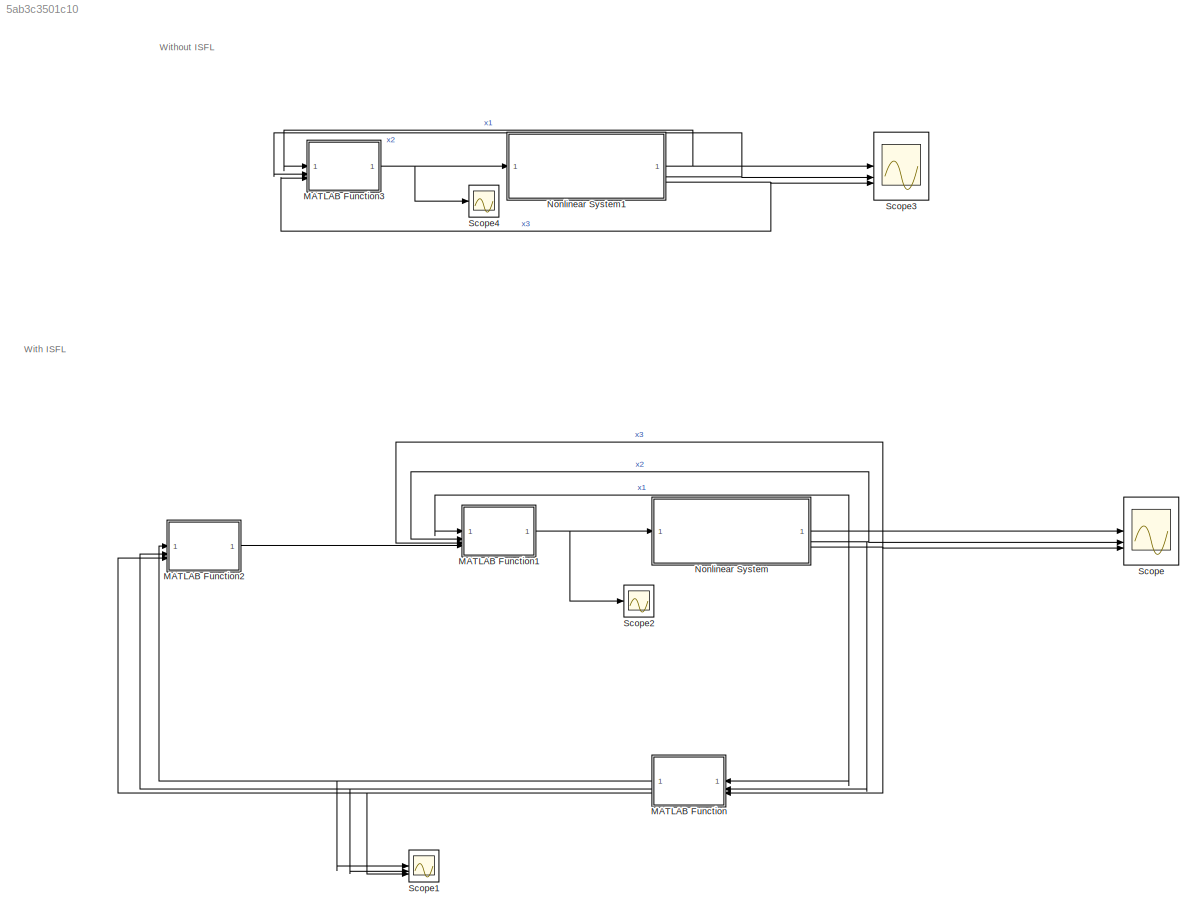
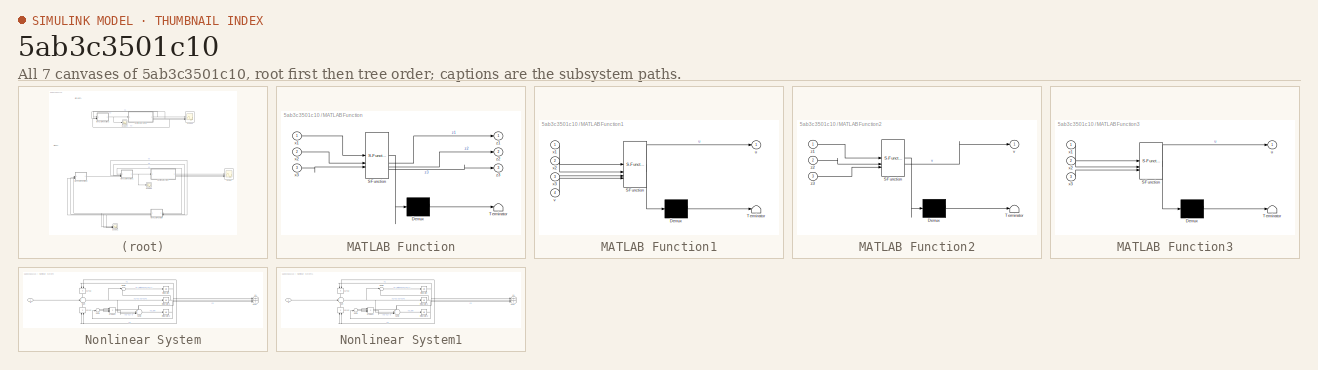
[diagram: thumbnail index - all 7 canvases of the model, root first then tree order]
MODEL slx_5ab3c3501c10
KIND model
CONFIG AbsTol = auto
CONFIG EnableMultiTasking = off
CONFIG FixedStep = auto
CONFIG MaxStep = auto
CONFIG MinStep = auto
CONFIG RelTol = 1e-3
CONFIG SampleTimeConstraint = Unconstrained
CONFIG SolverName = VariableStepAuto
CONFIG StartTime = 0.0
CONFIG StopTime = 10.0
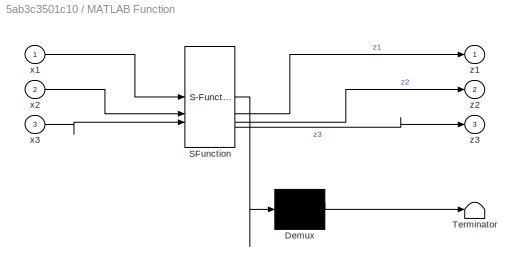
BLOCK [SubSystem] MATLAB Function
  ErrorFcn = Stateflow.Translate.translate
  LibrarySourceBlock = simulink/User-Defined\nFunctions/MATLAB Function
  NameLocation = top
  PermitHierarchicalResolution = ExplicitOnly
  SFBlockType = MATLAB Function
  TreatAsAtomicUnit = on
BLOCK [Demux] MATLAB Function/ Demux 
  Outputs = 1
BLOCK [S-Function] MATLAB Function/ SFunction 
  EnableBusSupport = on
  FunctionName = sf_sfun
  PortCounts = [3 4]
  SFcnIsStateOwnerBlock = off
  SFunctionDeploymentMode = off
  Tag = Stateflow S-Function 2
BLOCK [Terminator] MATLAB Function/ Terminator 
BLOCK [Inport] MATLAB Function/x1
BLOCK [Inport] MATLAB Function/x2
  Port = 2
BLOCK [Inport] MATLAB Function/x3
  Port = 3
BLOCK [Outport] MATLAB Function/z1
BLOCK [Outport] MATLAB Function/z2
  Port = 2
BLOCK [Outport] MATLAB Function/z3
  Port = 3
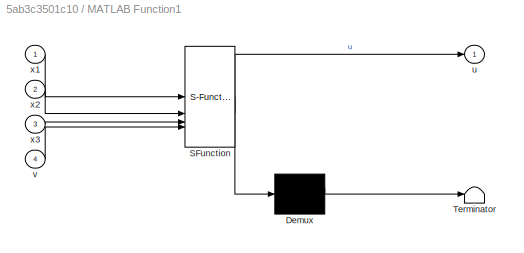
BLOCK [SubSystem] MATLAB Function1
  ErrorFcn = Stateflow.Translate.translate
  LibrarySourceBlock = simulink/User-Defined\nFunctions/MATLAB Function
  PermitHierarchicalResolution = ExplicitOnly
  SFBlockType = MATLAB Function
  TreatAsAtomicUnit = on
BLOCK [Demux] MATLAB Function1/ Demux 
  Outputs = 1
BLOCK [S-Function] MATLAB Function1/ SFunction 
  EnableBusSupport = on
  FunctionName = sf_sfun
  PortCounts = [4 2]
  SFcnIsStateOwnerBlock = off
  SFunctionDeploymentMode = off
  Tag = Stateflow S-Function 1
BLOCK [Terminator] MATLAB Function1/ Terminator 
BLOCK [Outport] MATLAB Function1/u
BLOCK [Inport] MATLAB Function1/v
  Port = 4
BLOCK [Inport] MATLAB Function1/x1
BLOCK [Inport] MATLAB Function1/x2
  Port = 2
BLOCK [Inport] MATLAB Function1/x3
  Port = 3
BLOCK [SubSystem] MATLAB Function2
  ErrorFcn = Stateflow.Translate.translate
  LibrarySourceBlock = simulink/User-Defined\nFunctions/MATLAB Function
  PermitHierarchicalResolution = ExplicitOnly
  SFBlockType = MATLAB Function
  TreatAsAtomicUnit = on
BLOCK [Demux] MATLAB Function2/ Demux 
  Outputs = 1
BLOCK [S-Function] MATLAB Function2/ SFunction 
  EnableBusSupport = on
  FunctionName = sf_sfun
  PortCounts = [3 2]
  SFcnIsStateOwnerBlock = off
  SFunctionDeploymentMode = off
  Tag = Stateflow S-Function 3
BLOCK [Terminator] MATLAB Function2/ Terminator 
BLOCK [Outport] MATLAB Function2/v
BLOCK [Inport] MATLAB Function2/z1
BLOCK [Inport] MATLAB Function2/z2
  Port = 2
BLOCK [Inport] MATLAB Function2/z3
  Port = 3
BLOCK [SubSystem] MATLAB Function3
  ErrorFcn = Stateflow.Translate.translate
  LibrarySourceBlock = simulink/User-Defined\nFunctions/MATLAB Function
  PermitHierarchicalResolution = ExplicitOnly
  SFBlockType = MATLAB Function
  TreatAsAtomicUnit = on
BLOCK [Demux] MATLAB Function3/ Demux 
  Outputs = 1
BLOCK [S-Function] MATLAB Function3/ SFunction 
  EnableBusSupport = on
  FunctionName = sf_sfun
  PortCounts = [3 2]
  SFcnIsStateOwnerBlock = off
  SFunctionDeploymentMode = off
  Tag = Stateflow S-Function 4
BLOCK [Terminator] MATLAB Function3/ Terminator 
BLOCK [Outport] MATLAB Function3/u
BLOCK [Inport] MATLAB Function3/x1
BLOCK [Inport] MATLAB Function3/x2
  Port = 2
BLOCK [Inport] MATLAB Function3/x3
  Port = 3
BLOCK [SubSystem] Nonlinear System
BLOCK [Integrator] Nonlinear System/Integrator
  InitialCondition = 1
BLOCK [Integrator] Nonlinear System/Integrator1
  InitialCondition = 1
BLOCK [Integrator] Nonlinear System/Integrator2
  InitialCondition = 1
BLOCK [Product] Nonlinear System/Product
  Inputs = 3
BLOCK [Sum] Nonlinear System/Sum
  Inputs = ++-
BLOCK [Sum] Nonlinear System/Sum1
  Inputs = -+|
BLOCK [Sum] Nonlinear System/Sum2
  Inputs = ++-|
BLOCK [Sum] Nonlinear System/Sum3
  Inputs = |++
BLOCK [Inport] Nonlinear System/u
BLOCK [Outport] Nonlinear System/x1
BLOCK [Product] Nonlinear System/x1*x2
  NameLocation = left
BLOCK [Outport] Nonlinear System/x2
  Port = 2
BLOCK [Product] Nonlinear System/x2*x2
  NameLocation = right
BLOCK [Outport] Nonlinear System/x3
  Port = 3
BLOCK [SubSystem] Nonlinear System1
BLOCK [Integrator] Nonlinear System1/Integrator
  InitialCondition = 1
BLOCK [Integrator] Nonlinear System1/Integrator1
  InitialCondition = 1
BLOCK [Integrator] Nonlinear System1/Integrator2
  InitialCondition = 1
BLOCK [Product] Nonlinear System1/Product
  Inputs = 3
BLOCK [Sum] Nonlinear System1/Sum
  Inputs = ++-
BLOCK [Sum] Nonlinear System1/Sum1
  Inputs = -+|
BLOCK [Sum] Nonlinear System1/Sum2
  Inputs = ++-|
BLOCK [Sum] Nonlinear System1/Sum3
  Inputs = |++
BLOCK [Inport] Nonlinear System1/u
BLOCK [Outport] Nonlinear System1/x1
BLOCK [Product] Nonlinear System1/x1*x2
  NameLocation = left
BLOCK [Outport] Nonlinear System1/x2
  Port = 2
BLOCK [Product] Nonlinear System1/x2*x2
  NameLocation = right
BLOCK [Outport] Nonlinear System1/x3
  Port = 3
BLOCK [Scope] Scope
  Floating = off
  NumInputPorts = 3
  ScopeSpecificationString = Simulink.scopes.TimeScopeBlockCfg('CurrentConfiguration', extmgr.ConfigurationSet(extmgr.Configuration('Core','General UI',true,'FigureColor',[1 1 1]),extmgr.Configuration('Core','Source UI',true),extmgr.Configuration('Sources','WiredSimulink',true),extmgr.Configuration('Visuals','Time Domain',true,'SerializedDisplays',{struct('MinYLimReal','-0.25696','MaxYLimReal','1.13966','YLabelReal','','MinYL...<+1857ch>
BLOCK [Scope] Scope1
  Floating = off
  NumInputPorts = 3
  ScopeSpecificationString = Simulink.scopes.TimeScopeBlockCfg('CurrentConfiguration', extmgr.ConfigurationSet(extmgr.Configuration('Core','General UI',true),extmgr.Configuration('Core','Source UI',true),extmgr.Configuration('Sources','WiredSimulink',true,'DataLoggingVariableName','ScopeData1'),extmgr.Configuration('Visuals','Time Domain',true,'SerializedDisplays',{struct('MinYLimReal','-1.13975','MaxYLimReal','0.25775','YLab...<+1448ch>
BLOCK [Scope] Scope2
  Floating = off
  NumInputPorts = 1
  ScopeSpecificationString = Simulink.scopes.TimeScopeBlockCfg('CurrentConfiguration', extmgr.ConfigurationSet(extmgr.Configuration('Core','General UI',true,'FigureColor',[1 1 1]),extmgr.Configuration('Core','Source UI',true),extmgr.Configuration('Sources','WiredSimulink',true,'DataLoggingVariableName','ScopeData1'),extmgr.Configuration('Visuals','Time Domain',true,'SerializedDisplays',{struct('MinYLimReal','-15.77296','MaxYL...<+1678ch>
BLOCK [Scope] Scope3
  Floating = off
  NumInputPorts = 3
  ScopeSpecificationString = Simulink.scopes.TimeScopeBlockCfg('CurrentConfiguration', extmgr.ConfigurationSet(extmgr.Configuration('Core','General UI',true,'FigureColor',[1 1 1]),extmgr.Configuration('Core','Source UI',true),extmgr.Configuration('Sources','WiredSimulink',true,'DataLoggingVariableName','ScopeData2'),extmgr.Configuration('Visuals','Time Domain',true,'SerializedDisplays',{struct('MinYLimReal','-0.34442','MaxYLi...<+1902ch>
BLOCK [Scope] Scope4
  Floating = off
  NumInputPorts = 1
  ScopeSpecificationString = Simulink.scopes.TimeScopeBlockCfg('CurrentConfiguration', extmgr.ConfigurationSet(extmgr.Configuration('Core','General UI',true,'FigureColor',[1 1 1]),extmgr.Configuration('Core','Source UI',true),extmgr.Configuration('Sources','WiredSimulink',true,'DataLoggingVariableName','ScopeData3'),extmgr.Configuration('Visuals','Time Domain',true,'SerializedDisplays',{struct('MinYLimReal','-3.38796','MaxYLi...<+1681ch>
ANNOTATION (root): With ISFL
ANNOTATION (root): Without ISFL
NET MATLAB Function1:1 -> Nonlinear System:1, Scope2:1
LINE MATLAB Function2:1 -> MATLAB Function1:4
NET MATLAB Function3:1 -> Nonlinear System1:1, Scope4:1
NET MATLAB Function:1 -> MATLAB Function2:1, Scope1:1
NET MATLAB Function:2 -> MATLAB Function2:2, Scope1:2
NET MATLAB Function:3 -> MATLAB Function2:3, Scope1:3
NET Nonlinear System/Integrator1:1 -> Nonlinear System/Sum3:2, Nonlinear System/x1*x2:2, Nonlinear System/x2*x2:1, Nonlinear System/x2*x2:2, Nonlinear System/x2:1
NET Nonlinear System/Integrator2:1 -> Nonlinear System/Sum1:2, Nonlinear System/x3:1
NET Nonlinear System/Integrator:1 -> Nonlinear System/Sum1:1, Nonlinear System/Sum2:1, Nonlinear System/x1*x2:1, Nonlinear System/x1:1
LINE Nonlinear System/Product:1 -> Nonlinear System/Sum2:3
NET Nonlinear System/Sum1:1 -> Nonlinear System/Product:1, Nonlinear System/Product:2, Nonlinear System/Product:3
LINE Nonlinear System/Sum2:1 -> Nonlinear System/Integrator2:1
LINE Nonlinear System/Sum3:1 -> Nonlinear System/Integrator:1
NET Nonlinear System/Sum:1 -> Nonlinear System/Integrator1:1, Nonlinear System/Sum2:2, Nonlinear System/Sum3:1
LINE Nonlinear System/u:1 -> Nonlinear System/Sum:2
LINE Nonlinear System/x1*x2:1 -> Nonlinear System/Sum:1
LINE Nonlinear System/x2*x2:1 -> Nonlinear System/Sum:3
NET Nonlinear System1/Integrator1:1 -> Nonlinear System1/Sum3:2, Nonlinear System1/x1*x2:2, Nonlinear System1/x2*x2:1, Nonlinear System1/x2*x2:2, Nonlinear System1/x2:1
NET Nonlinear System1/Integrator2:1 -> Nonlinear System1/Sum1:2, Nonlinear System1/x3:1
NET Nonlinear System1/Integrator:1 -> Nonlinear System1/Sum1:1, Nonlinear System1/Sum2:1, Nonlinear System1/x1*x2:1, Nonlinear System1/x1:1
LINE Nonlinear System1/Product:1 -> Nonlinear System1/Sum2:3
NET Nonlinear System1/Sum1:1 -> Nonlinear System1/Product:1, Nonlinear System1/Product:2, Nonlinear System1/Product:3
LINE Nonlinear System1/Sum2:1 -> Nonlinear System1/Integrator2:1
LINE Nonlinear System1/Sum3:1 -> Nonlinear System1/Integrator:1
NET Nonlinear System1/Sum:1 -> Nonlinear System1/Integrator1:1, Nonlinear System1/Sum2:2, Nonlinear System1/Sum3:1
LINE Nonlinear System1/u:1 -> Nonlinear System1/Sum:2
LINE Nonlinear System1/x1*x2:1 -> Nonlinear System1/Sum:1
LINE Nonlinear System1/x2*x2:1 -> Nonlinear System1/Sum:3
NET Nonlinear System1:1 -> MATLAB Function3:1, Scope3:1
NET Nonlinear System1:2 -> MATLAB Function3:2, Scope3:2
NET Nonlinear System1:3 -> MATLAB Function3:3, Scope3:3
NET Nonlinear System:1 -> MATLAB Function1:1, MATLAB Function:1, Scope:1
NET Nonlinear System:2 -> MATLAB Function1:2, MATLAB Function:2, Scope:2
NET Nonlinear System:3 -> MATLAB Function1:3, MATLAB Function:3, Scope:3
note: NET lines group one-source signal fan-out (src -> all destinations, sorted); 1:1 wires keep LINE
CHART MATLAB Function1 states=1 transitions=1
  STATE_LABEL 'eML_blk_kernel()'
  STATE_LABEL 'SCRIPT:\nfunction u= fcn(x1,x2,x3,v)\n\nq = x1 - x3;\nLfq = x2 - x1 - (x1 - x3)^3;\nLf2q = x1*x2 - (3*(x1 - x3)^2 + 1)*(x2 + x1*x2 - x2^2) - x2^2 + 3*(x1 - x3)^2*(x1 + (x1 - x3)^3 + x1*x2 - x2^2);\nLf3q = (x2 + x1*x2 - x2^2)*(x2 - x2*(3*(x1 - x3)^2 + 1) + 3*(x1 - x3)^2*(x2 + 3*(x1 - x3)^2 + 1) - (6*x1 - 6*x3)*(x2 + x1*x2 - x2^2) + 3*(2*x1 - 2*x3)*(x1 + (x1 - x3)^3 + x1*x2 - x2^2)) - (9*(x1 - x3)^4 - (6*...<+521ch>'
CHART MATLAB Function states=1 transitions=1
  STATE_LABEL 'eML_blk_kernel()'
  STATE_LABEL 'SCRIPT:\nfunction [z1,z2,z3] = fcn(x1,x2,x3)\n\nq = x1 -x3;\nLfq = x2 - x1 - (x1 - x3)^3;\nLf2q = x1*x2 - (3*(x1 - x3)^2 + 1)*(x2 + x1*x2 - x2^2) - x2^2 + 3*(x1 - x3)^2*(x1 + (x1 - x3)^3 + x1*x2 - x2^2);\n\nz1 = q;\nz2 = Lfq;\nz3 = Lf2q;\n'
CHART MATLAB Function2 states=1 transitions=1
  STATE_LABEL 'eML_blk_kernel()'
  STATE_LABEL 'SCRIPT:\nfunction v = fcn(z1, z2, z3)\n\nk1 = -1;\nk2 = -1;\nk3 = -1;\n\nv = k1*z1+k2*z2+k3*z3;\n'
CHART MATLAB Function3 states=1 transitions=1
  STATE_LABEL 'eML_blk_kernel()'
  STATE_LABEL 'SCRIPT:\nfunction u= fcn(x1,x2,x3)\n\nu = -1*x1-x2-x3;\n\n'
CHART  states=0 transitions=0
CHART  states=0 transitions=0
CHART  states=0 transitions=0
CHART  states=0 transitions=0
